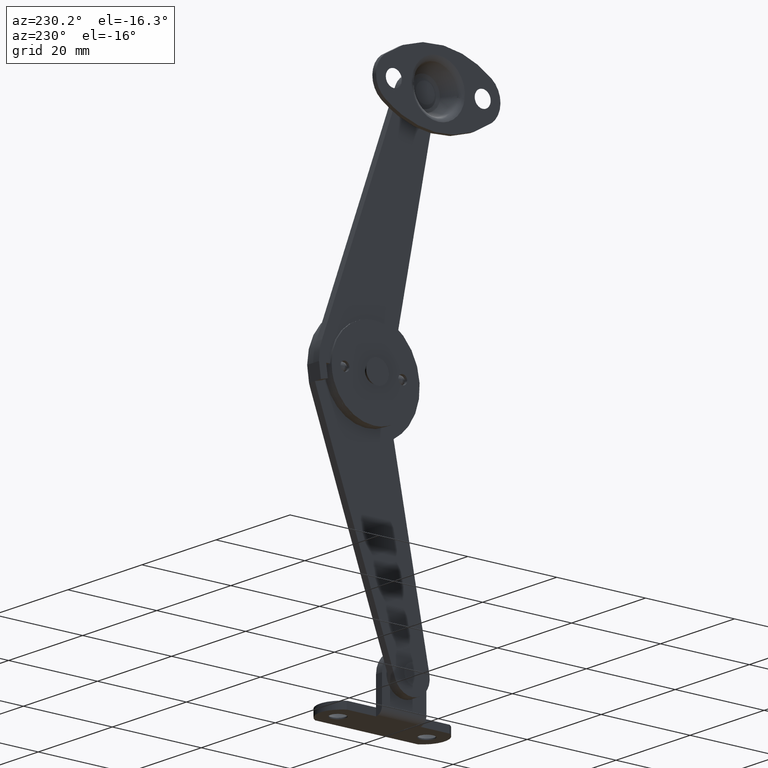
[diagram: clean part render]
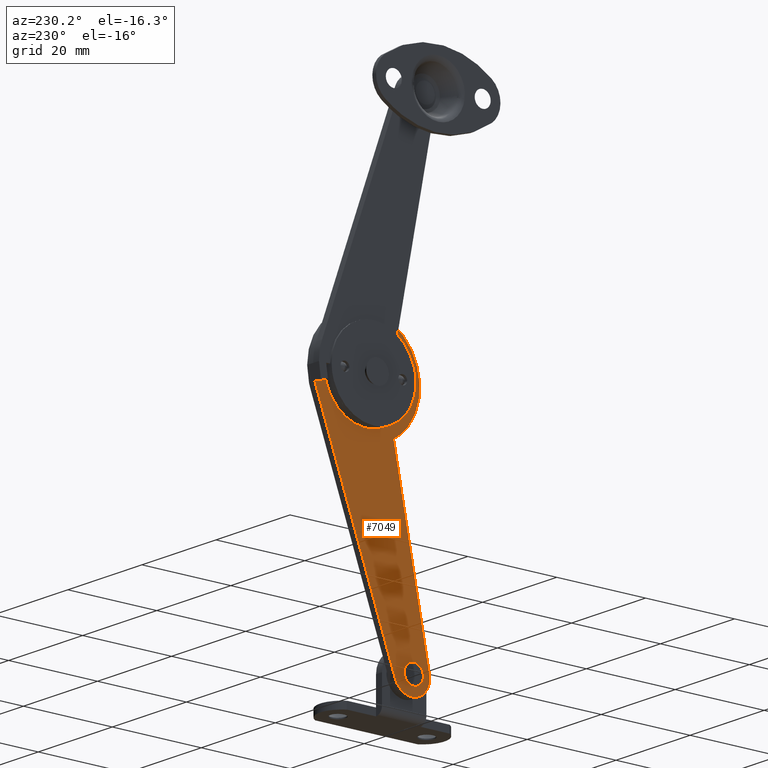
[diagram: same view with one face highlighted and labeled with its STEP entity id]
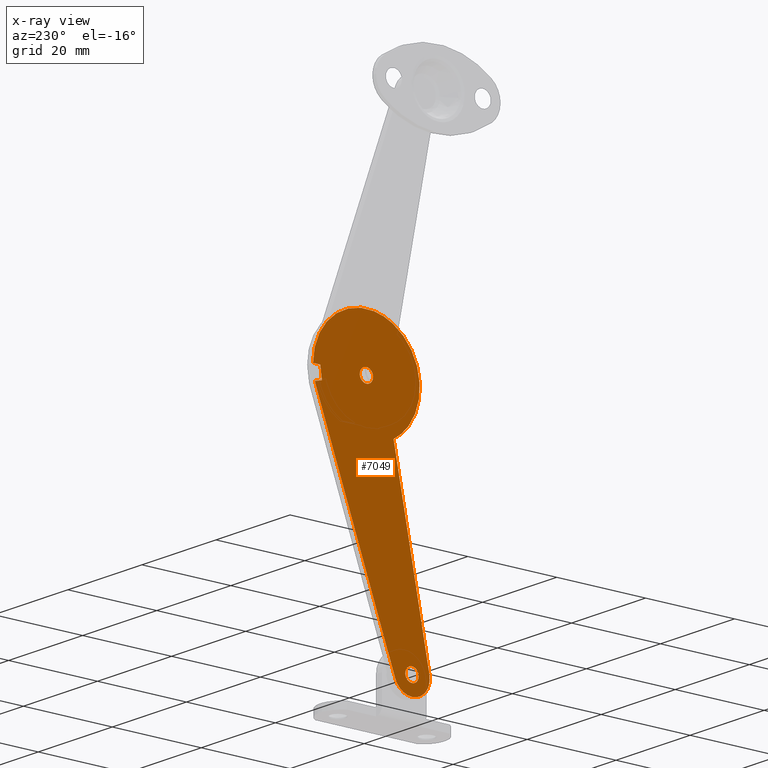
[diagram: x-ray of the same camera — body ghosted, the highlighted face saturated]
A machine part, auxiliary view. The second image highlights one B-rep face of the part: STEP entity #7049.
The next image is the same camera in x-ray: the body ghosted, the highlighted face saturated — about 0% of this face is hidden behind the body in this view.
In plain terms, the highlighted face is a freeform B-spline surface patch.
Its self-contained STEP definition (entity closure, byte-faithful):
#6596=CARTESIAN_POINT('',(7.099998474121129,1.032531493522997,-53.088060860417997));
#6597=VERTEX_POINT('',#6596);
#6603=CARTESIAN_POINT('',(7.099998474121129,0.0,-53.500000000000000));
#6604=VERTEX_POINT('',#6603);
#6605=CARTESIAN_POINT('',(7.099998474121129,0.0,-53.500000000000000));
#6606=CARTESIAN_POINT('',(7.099998474121113,0.201703379192736,-53.500250336097679));
#6607=CARTESIAN_POINT('',(7.099998474121146,0.581082907142416,-53.422181156560377));
#6608=CARTESIAN_POINT('',(7.099998474121128,0.903535987050050,-53.210661762229073));
#6609=CARTESIAN_POINT('',(7.099998474121129,1.032531493522997,-53.088060860417997));
#6610=B_SPLINE_CURVE_WITH_KNOTS('',3,(#6605,#6606,#6607,#6608,#6609),.UNSPECIFIED.,.F.,.U.,(4,1,4),(0.000000055617575,0.605000239507087,1.138853963789045),.UNSPECIFIED.);
#6611=EDGE_CURVE('',#6604,#6597,#6610,.T.);
#6613=CARTESIAN_POINT('',(7.099998474121129,-1.499999999996914,-52.000003042715463));
#6614=VERTEX_POINT('',#6613);
#6615=CARTESIAN_POINT('',(7.099998474121129,-1.499999999996914,-52.000003042715463));
#6616=CARTESIAN_POINT('',(7.099998474121130,-1.500345545984056,-52.220962173539789));
#6617=CARTESIAN_POINT('',(7.099998474121137,-1.419902324398696,-52.576535488658848));
#6618=CARTESIAN_POINT('',(7.099998474121125,-1.169941384941945,-52.960572883161063));
#6619=CARTESIAN_POINT('',(7.099998474121128,-0.919875314047919,-53.198635500760432));
#6620=CARTESIAN_POINT('',(7.099998474121139,-0.551996970261081,-53.425424973815588));
#6621=CARTESIAN_POINT('',(7.099998474121111,-0.220969073994929,-53.500358463292507));
#6622=CARTESIAN_POINT('',(7.099998474121129,0.0,-53.500000000000000));
#6623=B_SPLINE_CURVE_WITH_KNOTS('',3,(#6615,#6616,#6617,#6618,#6619,#6620,#6621,#6622),.UNSPECIFIED.,.F.,.U.,(4,1,1,1,1,4),(0.000000288015872,0.662699799461395,1.067678059348184,1.362177217291333,1.693552388405020,2.356251901589147),.UNSPECIFIED.);
#6624=EDGE_CURVE('',#6614,#6604,#6623,.T.);
#6626=CARTESIAN_POINT('',(7.099998474121129,0.0,-50.499999999999993));
#6627=VERTEX_POINT('',#6626);
#6628=CARTESIAN_POINT('',(7.099998474121129,0.0,-50.499999999999993));
#6629=CARTESIAN_POINT('',(7.099998474121143,-0.196380286876731,-50.499791180720337));
#6630=CARTESIAN_POINT('',(7.099998474121099,-0.527571323811754,-50.566025826788596));
#6631=CARTESIAN_POINT('',(7.099998474121153,-0.902023574211386,-50.784341648759529));
#6632=CARTESIAN_POINT('',(7.099998474121118,-1.152071437962525,-51.022435920222627));
#6633=CARTESIAN_POINT('',(7.099998474121165,-1.347682324044975,-51.307483534780282));
#6634=CARTESIAN_POINT('',(7.099998474121049,-1.472803049476378,-51.644115988787483));
#6635=CARTESIAN_POINT('',(7.099998474121219,-1.500010466685041,-51.889558457076447));
#6636=CARTESIAN_POINT('',(7.099998474121129,-1.499999999996914,-52.000003042715463));
#6637=B_SPLINE_CURVE_WITH_KNOTS('',3,(#6628,#6629,#6630,#6631,#6632,#6633,#6634,#6635,#6636),.UNSPECIFIED.,.F.,.U.,(4,1,1,1,1,1,4),(0.000000283863455,0.589064045423519,0.994076413415713,1.288576005405115,1.619920505931810,2.024911528523917,2.356255331524166),.UNSPECIFIED.);
#6638=EDGE_CURVE('',#6627,#6614,#6637,.T.);
#6640=CARTESIAN_POINT('',(7.099998474121129,1.145334037168641,-51.031386458042547));
#6641=VERTEX_POINT('',#6640);
#6642=CARTESIAN_POINT('',(7.099998474121129,1.145334037168641,-51.031386458042547));
#6643=CARTESIAN_POINT('',(7.099998474121127,0.996589544052949,-50.854848840238212));
#6644=CARTESIAN_POINT('',(7.099998474121146,0.637850671432276,-50.589882888419311));
#6645=CARTESIAN_POINT('',(7.099998474121117,0.203662447220135,-50.499780386083238));
#6646=CARTESIAN_POINT('',(7.099998474121129,0.0,-50.499999999999993));
#6647=B_SPLINE_CURVE_WITH_KNOTS('',3,(#6642,#6643,#6644,#6645,#6646),.UNSPECIFIED.,.F.,.U.,(4,1,4),(0.000000083456976,0.692330028737207,1.303242774409593),.UNSPECIFIED.);
#6648=EDGE_CURVE('',#6641,#6627,#6647,.T.);
#6683=CARTESIAN_POINT('',(7.099998474121129,1.499999999996914,-51.999996957284530));
#6684=VERTEX_POINT('',#6683);
#6685=CARTESIAN_POINT('',(7.099998474121129,1.499999999996914,-51.999996957284530));
#6686=CARTESIAN_POINT('',(7.099998474121107,1.500366738086189,-51.780549520734972));
#6687=CARTESIAN_POINT('',(7.099998474121176,1.421510973789102,-51.429902000169562));
#6688=CARTESIAN_POINT('',(7.099998474121096,1.230355103172428,-51.131869724610823));
#6689=CARTESIAN_POINT('',(7.099998474121129,1.145334037168641,-51.031386458042547));
#6690=B_SPLINE_CURVE_WITH_KNOTS('',3,(#6685,#6686,#6687,#6688,#6689),.UNSPECIFIED.,.F.,.U.,(4,1,4),(0.000000047974926,0.658121318862436,1.053010386949288),.UNSPECIFIED.);
#6691=EDGE_CURVE('',#6684,#6641,#6690,.T.);
#6693=CARTESIAN_POINT('',(7.099998474121129,1.032531493522997,-53.088060860417997));
#6694=CARTESIAN_POINT('',(7.099998474121120,1.207708822404422,-52.922483741150359));
#6695=CARTESIAN_POINT('',(7.099998474121118,1.432500527955628,-52.570639262233648));
#6696=CARTESIAN_POINT('',(7.099998474121143,1.500068996231893,-52.164845500082450));
#6697=CARTESIAN_POINT('',(7.099998474121129,1.499999999996914,-51.999996957284530));
#6698=B_SPLINE_CURVE_WITH_KNOTS('',3,(#6693,#6694,#6695,#6696,#6697),.UNSPECIFIED.,.F.,.U.,(4,1,4),(0.000000077547429,0.722828752754251,1.217402295470103),.UNSPECIFIED.);
#6699=EDGE_CURVE('',#6597,#6684,#6698,.T.);
#6786=CARTESIAN_POINT('',(7.099998474121129,11.279504755844140,-1.088060860417998));
#6787=VERTEX_POINT('',#6786);
#6793=CARTESIAN_POINT('',(7.099998474121129,10.246973262321140,-1.499999999999998));
#6794=VERTEX_POINT('',#6793);
#6795=CARTESIAN_POINT('',(7.099998474121129,10.246973262321140,-1.499999999999998));
#6796=CARTESIAN_POINT('',(7.099998474121151,10.424936779936241,-1.500139606686057));
#6797=CARTESIAN_POINT('',(7.099998474121107,10.804441182681810,-1.431620550348039));
#6798=CARTESIAN_POINT('',(7.099998474121138,11.133352545530530,-1.227064351106838));
#6799=CARTESIAN_POINT('',(7.099998474121129,11.279504755844140,-1.088060860417998));
#6800=B_SPLINE_CURVE_WITH_KNOTS('',3,(#6795,#6796,#6797,#6798,#6799),.UNSPECIFIED.,.F.,.U.,(4,1,4),(0.000000055617372,0.533851520431574,1.138853963789040),.UNSPECIFIED.);
#6801=EDGE_CURVE('',#6794,#6787,#6800,.T.);
#6803=CARTESIAN_POINT('',(7.099998474121129,8.746973262324227,-0.000003042715460));
#6804=VERTEX_POINT('',#6803);
#6805=CARTESIAN_POINT('',(7.099998474121129,8.746973262324227,-0.000003042715460));
#6806=CARTESIAN_POINT('',(7.099998474121127,8.746861545996760,-0.171822070326154));
#6807=CARTESIAN_POINT('',(7.099998474121142,8.804521788459930,-0.503097638430968));
#6808=CARTESIAN_POINT('',(7.099998474121125,9.014257694124487,-0.884190575551772));
#6809=CARTESIAN_POINT('',(7.099998474121129,9.286409950959261,-1.169938880105031));
#6810=CARTESIAN_POINT('',(7.099998474121112,9.670440260591736,-1.419903121654825));
#6811=CARTESIAN_POINT('',(7.099998474121114,10.026014295606720,-1.500345477506089));
#6812=CARTESIAN_POINT('',(7.099998474121129,10.246973262321140,-1.499999999999998));
#6813=B_SPLINE_CURVE_WITH_KNOTS('',3,(#6805,#6806,#6807,#6808,#6809,#6810,#6811,#6812),.UNSPECIFIED.,.F.,.U.,(4,1,1,1,1,4),(0.000000288017779,0.515426583519847,0.994074968509131,1.288574122024787,1.693552388405666,2.356251901589093),.UNSPECIFIED.);
#6814=EDGE_CURVE('',#6804,#6794,#6813,.T.);
#6816=CARTESIAN_POINT('',(7.099998474121129,10.246973262321140,1.500000000000002));
#6817=VERTEX_POINT('',#6816);
#6818=CARTESIAN_POINT('',(7.099998474121129,10.246973262321140,1.500000000000002));
#6819=CARTESIAN_POINT('',(7.099998474121109,10.026020064221020,1.500318828368111));
#6820=CARTESIAN_POINT('',(7.099998474121159,9.621354609662639,1.408919083039691));
#6821=CARTESIAN_POINT('',(7.099998474121136,9.156054318967307,1.072551831293064));
#6822=CARTESIAN_POINT('',(7.099998474121093,8.832560788978860,0.601106409946978));
#6823=CARTESIAN_POINT('',(7.099998474121184,8.746671311320737,0.220935414571704));
#6824=CARTESIAN_POINT('',(7.099998474121129,8.746973262324227,-0.000003042715460));
#6825=B_SPLINE_CURVE_WITH_KNOTS('',3,(#6818,#6819,#6820,#6821,#6822,#6823,#6824),.UNSPECIFIED.,.F.,.U.,(4,1,1,1,4),(0.000000283861715,0.662700760889219,1.214902453565014,1.693554856234692,2.356255331524174),.UNSPECIFIED.);
#6826=EDGE_CURVE('',#6817,#6804,#6825,.T.);
#6828=CARTESIAN_POINT('',(7.099998474121129,11.392307299489779,0.968613541957452));
#6829=VERTEX_POINT('',#6828);
#6830=CARTESIAN_POINT('',(7.099998474121129,11.392307299489779,0.968613541957452));
#6831=CARTESIAN_POINT('',(7.099998474121127,11.243553967501610,1.145122482735535));
#6832=CARTESIAN_POINT('',(7.099998474121142,10.884827054675430,1.410162885297684));
#6833=CARTESIAN_POINT('',(7.099998474121106,10.450633458435689,1.500198197194137));
#6834=CARTESIAN_POINT('',(7.099998474121129,10.246973262321140,1.500000000000002));
#6835=B_SPLINE_CURVE_WITH_KNOTS('',3,(#6830,#6831,#6832,#6833,#6834),.UNSPECIFIED.,.F.,.U.,(4,1,4),(0.000000083457594,0.692330028737345,1.303242774409602),.UNSPECIFIED.);
#6836=EDGE_CURVE('',#6829,#6817,#6835,.T.);
#6871=CARTESIAN_POINT('',(7.099998474121129,11.746973262318051,0.000003042715470));
#6872=VERTEX_POINT('',#6871);
#6873=CARTESIAN_POINT('',(7.099998474121129,11.746973262318051,0.000003042715470));
#6874=CARTESIAN_POINT('',(7.099998474121129,11.747001145505759,0.131628384684551));
#6875=CARTESIAN_POINT('',(7.099998474121135,11.700516684241171,0.482631678472467));
#6876=CARTESIAN_POINT('',(7.099998474121147,11.534292468834421,0.801290906199999));
#6877=CARTESIAN_POINT('',(7.099998474121129,11.392307299489779,0.968613541957452));
#6878=B_SPLINE_CURVE_WITH_KNOTS('',3,(#6873,#6874,#6875,#6876,#6877),.UNSPECIFIED.,.F.,.U.,(4,1,4),(0.000000047974360,0.394889115841552,1.053010386949280),.UNSPECIFIED.);
#6879=EDGE_CURVE('',#6872,#6829,#6878,.T.);
#6881=CARTESIAN_POINT('',(7.099998474121129,11.279504755844140,-1.088060860417998));
#6882=CARTESIAN_POINT('',(7.099998474121153,11.454687601031999,-0.922485013528898));
#6883=CARTESIAN_POINT('',(7.099998474121082,11.679456076450100,-0.570636515109932));
#6884=CARTESIAN_POINT('',(7.099998474121163,11.747053558361801,-0.164846950357479));
#6885=CARTESIAN_POINT('',(7.099998474121129,11.746973262318051,0.000003042715470));
#6886=B_SPLINE_CURVE_WITH_KNOTS('',3,(#6881,#6882,#6883,#6884,#6885),.UNSPECIFIED.,.F.,.U.,(4,1,4),(0.000000077546991,0.722828752754165,1.217402295470105),.UNSPECIFIED.);
#6887=EDGE_CURVE('',#6787,#6872,#6886,.T.);
#6901=CARTESIAN_POINT('',(7.099998474121120,-5.311006402379023,15.390515176673430));
#6902=CARTESIAN_POINT('',(7.099998474121120,23.558008809249561,15.390515176673430));
#6903=CARTESIAN_POINT('',(7.099998474121120,-5.311006402379023,-59.395329257419782));
#6904=CARTESIAN_POINT('',(7.099998474121120,23.558008809249561,-59.395329257419782));
#6905=B_SPLINE_SURFACE_WITH_KNOTS('',1,1,((#6901,#6903),(#6902,#6904)),.UNSPECIFIED.,.F.,.F.,.U.,(2,2),(2,2),(0.0,28.869015211628579),(0.0,74.785844434093207),.UNSPECIFIED.);
#6906=CARTESIAN_POINT('',(7.099998474121129,21.535469714833550,-4.070631911635386));
#6907=VERTEX_POINT('',#6906);
#6908=CARTESIAN_POINT('',(7.099998474121124,21.820245997214201,-3.171577234946378));
#6909=VERTEX_POINT('',#6908);
#6910=CARTESIAN_POINT('',(7.099998474121129,21.535469714833550,-4.070631911635386));
#6911=CARTESIAN_POINT('',(7.099998474121136,21.642122444948889,-3.774832658976689));
#6912=CARTESIAN_POINT('',(7.099998474121121,21.737148011488589,-3.474836626968233));
#6913=CARTESIAN_POINT('',(7.099998474121124,21.820245997214201,-3.171577234946378));
#6914=B_SPLINE_CURVE_WITH_KNOTS('',3,(#6910,#6911,#6912,#6913),.UNSPECIFIED.,.F.,.U.,(4,4),(2.863593E-010,0.943324902728033),.UNSPECIFIED.);
#6915=EDGE_CURVE('',#6907,#6909,#6914,.T.);
#6916=ORIENTED_EDGE('',*,*,#6915,.F.);
#6917=CARTESIAN_POINT('',(7.099998474121129,3.762834701924080,-53.356878760970297));
#6918=VERTEX_POINT('',#6917);
#6919=CARTESIAN_POINT('',(7.099998474121129,3.762834701924080,-53.356878760970297));
#6920=CARTESIAN_POINT('',(7.099998474121129,21.535469714833550,-4.070631911635386));
#6921=QUASI_UNIFORM_CURVE('',1,(#6919,#6920),.UNSPECIFIED.,.F.,.U.);
#6922=EDGE_CURVE('',#6918,#6907,#6921,.T.);
#6923=ORIENTED_EDGE('',*,*,#6922,.F.);
#6924=CARTESIAN_POINT('',(7.099998474121129,-1.068183353761745,-55.854742561925242));
#6925=VERTEX_POINT('',#6924);
#6926=CARTESIAN_POINT('',(7.099998474121129,-1.068183353761745,-55.854742561925242));
#6927=CARTESIAN_POINT('',(7.099998474121122,-0.572997734944682,-55.992538720293780));
#6928=CARTESIAN_POINT('',(7.099998474121150,0.344372224049531,-56.062897835469641));
#6929=CARTESIAN_POINT('',(7.099998474121131,1.500049376115855,-55.754111683179516));
#6930=CARTESIAN_POINT('',(7.099998474121126,2.291665977008721,-55.308769882980322));
#6931=CARTESIAN_POINT('',(7.099998474121140,2.934688906079805,-54.761782638267043));
#6932=CARTESIAN_POINT('',(7.099998474121120,3.432091734112317,-54.115028818723182));
#6933=CARTESIAN_POINT('',(7.099998474121131,3.678327263814099,-53.591273590135458));
#6934=CARTESIAN_POINT('',(7.099998474121129,3.762834701924080,-53.356878760970297));
#6935=B_SPLINE_CURVE_WITH_KNOTS('',3,(#6926,#6927,#6928,#6929,#6930,#6931,#6932,#6933,#6934),.UNSPECIFIED.,.F.,.U.,(4,1,1,1,1,1,4),(0.000000133099507,1.541766760424260,2.709791488662435,3.550711319856060,4.251535506574864,5.232682261772740,5.980184152299987),.UNSPECIFIED.);
#6936=EDGE_CURVE('',#6925,#6918,#6935,.T.);
#6937=ORIENTED_EDGE('',*,*,#6936,.F.);
#6938=CARTESIAN_POINT('',(7.099998474121129,-3.924537018917785,-51.226640025646198));
#6939=VERTEX_POINT('',#6938);
#6940=CARTESIAN_POINT('',(7.099998474121129,-3.924537018917785,-51.226640025646198));
#6941=CARTESIAN_POINT('',(7.099998474121126,-3.978770344934744,-51.501660158955332));
#6942=CARTESIAN_POINT('',(7.099998474121129,-4.030469106344289,-52.078747514440451));
#6943=CARTESIAN_POINT('',(7.099998474121136,-3.907906550168404,-53.042511647082449));
#6944=CARTESIAN_POINT('',(7.099998474121129,-3.489765175429921,-54.078898512081459));
#6945=CARTESIAN_POINT('',(7.099998474121103,-2.809485398288372,-54.907661610589209));
#6946=CARTESIAN_POINT('',(7.099998474121167,-1.976647844405940,-55.517717209342791));
#6947=CARTESIAN_POINT('',(7.099998474121150,-1.413406767625959,-55.759209726998748));
#6948=CARTESIAN_POINT('',(7.099998474121129,-1.068183353761745,-55.854742561925242));
#6949=B_SPLINE_CURVE_WITH_KNOTS('',3,(#6940,#6941,#6942,#6943,#6944,#6945,#6946,#6947,#6948),.UNSPECIFIED.,.F.,.U.,(4,1,1,1,1,1,4),(0.000000133113011,0.840948875519703,1.728648824676333,2.896662994883914,4.158096339339842,4.905627950233965,5.980187953796911),.UNSPECIFIED.);
#6950=EDGE_CURVE('',#6939,#6925,#6949,.T.);
#6951=ORIENTED_EDGE('',*,*,#6950,.F.);
#6952=CARTESIAN_POINT('',(7.099998474121129,4.135061934568050,-10.326884327893060));
#6953=VERTEX_POINT('',#6952);
#6954=CARTESIAN_POINT('',(7.099998474121129,4.135061934568050,-10.326884327893060));
#6955=CARTESIAN_POINT('',(7.099998474121129,-3.924537018917785,-51.226640025646198));
#6956=QUASI_UNIFORM_CURVE('',1,(#6954,#6955),.UNSPECIFIED.,.F.,.U.);
#6957=EDGE_CURVE('',#6953,#6939,#6956,.T.);
#6958=ORIENTED_EDGE('',*,*,#6957,.F.);
#6959=CARTESIAN_POINT('',(7.099998474121128,4.303189660753997,10.424559295132889));
#6960=VERTEX_POINT('',#6959);
#6961=CARTESIAN_POINT('',(7.099998474121128,4.303189660753997,10.424559295132889));
#6962=CARTESIAN_POINT('',(7.099998474121123,3.565865487268095,10.004335318750829));
#6963=CARTESIAN_POINT('',(7.099998474121134,2.527335323944082,9.255875302249782));
#6964=CARTESIAN_POINT('',(7.099998474121132,1.091451641536532,7.825753035506386));
#6965=CARTESIAN_POINT('',(7.099998474121130,0.033450880430754,6.406322660028956));
#6966=CARTESIAN_POINT('',(7.099998474121135,-0.786887825075646,4.804009838471765));
#6967=CARTESIAN_POINT('',(7.099998474121149,-1.358136102052018,3.202773235907582));
#6968=CARTESIAN_POINT('',(7.099998474121080,-1.696419953820049,1.567185389092071));
#6969=CARTESIAN_POINT('',(7.099998474121088,-1.796922228956607,-0.327854201344775));
#6970=CARTESIAN_POINT('',(7.099998474121154,-1.616686028390105,-2.087703310958068));
#6971=CARTESIAN_POINT('',(7.099998474121134,-1.166305235124220,-3.829488975753432));
#6972=CARTESIAN_POINT('',(7.099998474121183,-0.578980190121579,-5.251198364138745));
#6973=CARTESIAN_POINT('',(7.099998474121135,0.327656764822604,-6.841363765302826));
#6974=CARTESIAN_POINT('',(7.099998474120952,1.759718794062881,-8.636963213596259));
#6975=CARTESIAN_POINT('',(7.099998474121254,3.236027884062251,-9.795158058746820));
#6976=CARTESIAN_POINT('',(7.099998474121129,4.135061934568050,-10.326884327893060));
#6977=B_SPLINE_CURVE_WITH_KNOTS('',3,(#6961,#6962,#6963,#6964,#6965,#6966,#6967,#6968,#6969,#6970,#6971,#6972,#6973,#6974,#6975,#6976),.UNSPECIFIED.,.F.,.U.,(4,1,1,1,1,1,1,1,1,1,1,1,1,4),(0.000000158368877,2.545960262674118,3.818946891113377,6.071155131868565,7.833749863454475,9.204687228428226,11.163097967254220,12.827747074886259,14.884098252128130,16.450868625689811,18.213463093661431,19.486449778480960,21.934528055920371,25.067992314057442),.UNSPECIFIED.);
#6978=EDGE_CURVE('',#6960,#6953,#6977,.T.);
#6979=ORIENTED_EDGE('',*,*,#6978,.F.);
#6980=CARTESIAN_POINT('',(7.099998474121129,22.246973262321148,6.274254E-016));
#6981=VERTEX_POINT('',#6980);
#6982=CARTESIAN_POINT('',(7.099998474121129,22.246973262321148,6.274254E-016));
#6983=CARTESIAN_POINT('',(7.099998474121139,22.247124758685739,0.848666330741139));
#6984=CARTESIAN_POINT('',(7.099998474121111,22.111334446744038,2.121577484763543));
#6985=CARTESIAN_POINT('',(7.099998474121147,21.588725903202839,4.045755345814192));
#6986=CARTESIAN_POINT('',(7.099998474121109,20.821615670606459,5.820633830358109));
#6987=CARTESIAN_POINT('',(7.099998474121154,19.588658223022978,7.639580809482347));
#6988=CARTESIAN_POINT('',(7.099998474121117,18.207193819253430,9.037908998185221));
#6989=CARTESIAN_POINT('',(7.099998474121198,16.795645804290348,10.098997664327470));
#6990=CARTESIAN_POINT('',(7.099998474121047,15.167535124488920,11.009768910278879));
#6991=CARTESIAN_POINT('',(7.099998474121376,13.311460462183950,11.663403641142279));
#6992=CARTESIAN_POINT('',(7.099998474120763,11.116937778952421,12.033940365071841));
#6993=CARTESIAN_POINT('',(7.099998474121128,9.147644609060480,12.009792674223350));
#6994=CARTESIAN_POINT('',(7.099998474120913,6.735575805278018,11.561772508589041));
#6995=CARTESIAN_POINT('',(7.099998474121797,5.238775043366755,10.958427648905429));
#6996=CARTESIAN_POINT('',(7.099998474121128,4.303189660753997,10.424559295132889));
#6997=B_SPLINE_CURVE_WITH_KNOTS('',3,(#6982,#6983,#6984,#6985,#6986,#6987,#6988,#6989,#6990,#6991,#6992,#6993,#6994,#6995,#6996),.UNSPECIFIED.,.F.,.U.,(4,1,1,1,1,1,1,1,1,1,1,1,4),(0.000000158335677,2.545960881594780,3.818947819539730,5.973231845012371,8.323364384507389,10.379720163863540,11.848605297387859,13.611134554592320,15.961256755355359,17.723858037294359,20.269829850517990,21.836589831675528,25.067998408642008),.UNSPECIFIED.);
#6998=EDGE_CURVE('',#6981,#6960,#6997,.T.);
#6999=ORIENTED_EDGE('',*,*,#6998,.F.);
#7000=CARTESIAN_POINT('',(7.099998474121124,21.820245997214201,-3.171577234946378));
#7001=CARTESIAN_POINT('',(7.099998474121129,22.246973262321148,6.274254E-016));
#7002=QUASI_UNIFORM_CURVE('',1,(#7000,#7001),.UNSPECIFIED.,.F.,.U.);
#7003=EDGE_CURVE('',#6909,#6981,#7002,.T.);
#7004=ORIENTED_EDGE('',*,*,#7003,.F.);
#7005=CARTESIAN_POINT('',(7.099998474121129,22.246931538136600,6.274436E-016));
#7006=VERTEX_POINT('',#7005);
#7007=CARTESIAN_POINT('',(7.099998474121129,22.246931538136600,6.274436E-016));
#7008=CARTESIAN_POINT('',(7.099998474121124,21.820245997214201,-3.171577234946378));
#7009=QUASI_UNIFORM_CURVE('',1,(#7007,#7008),.UNSPECIFIED.,.F.,.U.);
#7010=EDGE_CURVE('',#7006,#6909,#7009,.T.);
#7011=ORIENTED_EDGE('',*,*,#7010,.F.);
#7012=CARTESIAN_POINT('',(7.099998474121129,20.632516538136851,1.332268E-015));
#7013=VERTEX_POINT('',#7012);
#7014=CARTESIAN_POINT('',(7.099998474121129,20.632516538136851,1.332268E-015));
#7015=CARTESIAN_POINT('',(7.099998474121129,22.246931538136600,6.274436E-016));
#7016=QUASI_UNIFORM_CURVE('',1,(#7014,#7015),.UNSPECIFIED.,.F.,.U.);
#7017=EDGE_CURVE('',#7013,#7006,#7016,.T.);
#7018=ORIENTED_EDGE('',*,*,#7017,.F.);
#7019=CARTESIAN_POINT('',(7.099998474121129,20.263251000000000,-2.744769999999020));
#7020=VERTEX_POINT('',#7019);
#7021=CARTESIAN_POINT('',(7.099998474121129,20.263251000000000,-2.744769999999020));
#7022=CARTESIAN_POINT('',(7.099998474121129,20.632516538136851,1.332268E-015));
#7023=QUASI_UNIFORM_CURVE('',1,(#7021,#7022),.UNSPECIFIED.,.F.,.U.);
#7024=EDGE_CURVE('',#7020,#7013,#7023,.T.);
#7025=ORIENTED_EDGE('',*,*,#7024,.F.);
#7026=CARTESIAN_POINT('',(7.099998474121124,21.820245997214201,-3.171577234946378));
#7027=CARTESIAN_POINT('',(7.099998474121129,20.263251000000000,-2.744769999999020));
#7028=QUASI_UNIFORM_CURVE('',1,(#7026,#7027),.UNSPECIFIED.,.F.,.U.);
#7029=EDGE_CURVE('',#6909,#7020,#7028,.T.);
#7030=ORIENTED_EDGE('',*,*,#7029,.F.);
#7031=EDGE_LOOP('',(#6916,#6923,#6937,#6951,#6958,#6979,#6999,#7004,#7011,#7018,#7025,#7030));
#7032=FACE_OUTER_BOUND('',#7031,.T.);
#7033=ORIENTED_EDGE('',*,*,#6826,.T.);
#7034=ORIENTED_EDGE('',*,*,#6814,.T.);
#7035=ORIENTED_EDGE('',*,*,#6801,.T.);
#7036=ORIENTED_EDGE('',*,*,#6887,.T.);
#7037=ORIENTED_EDGE('',*,*,#6879,.T.);
#7038=ORIENTED_EDGE('',*,*,#6836,.T.);
#7039=EDGE_LOOP('',(#7033,#7034,#7035,#7036,#7037,#7038));
#7040=FACE_BOUND('',#7039,.T.);
#7041=ORIENTED_EDGE('',*,*,#6638,.T.);
#7042=ORIENTED_EDGE('',*,*,#6624,.T.);
#7043=ORIENTED_EDGE('',*,*,#6611,.T.);
#7044=ORIENTED_EDGE('',*,*,#6699,.T.);
#7045=ORIENTED_EDGE('',*,*,#6691,.T.);
#7046=ORIENTED_EDGE('',*,*,#6648,.T.);
#7047=EDGE_LOOP('',(#7041,#7042,#7043,#7044,#7045,#7046));
#7048=FACE_BOUND('',#7047,.T.);
#7049=ADVANCED_FACE('',(#7032,#7040,#7048),#6905,.T.);